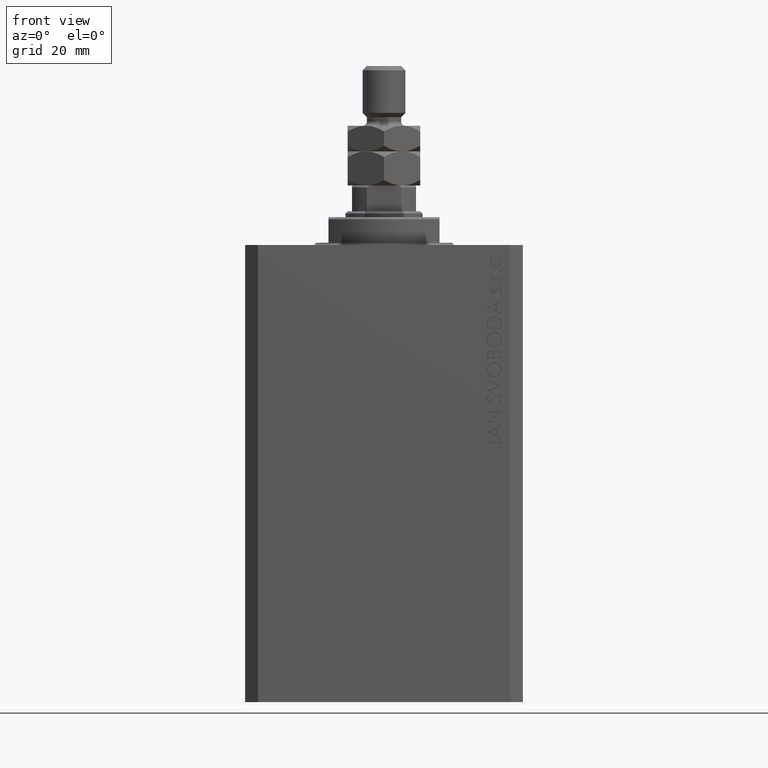
[diagram: clean part render]
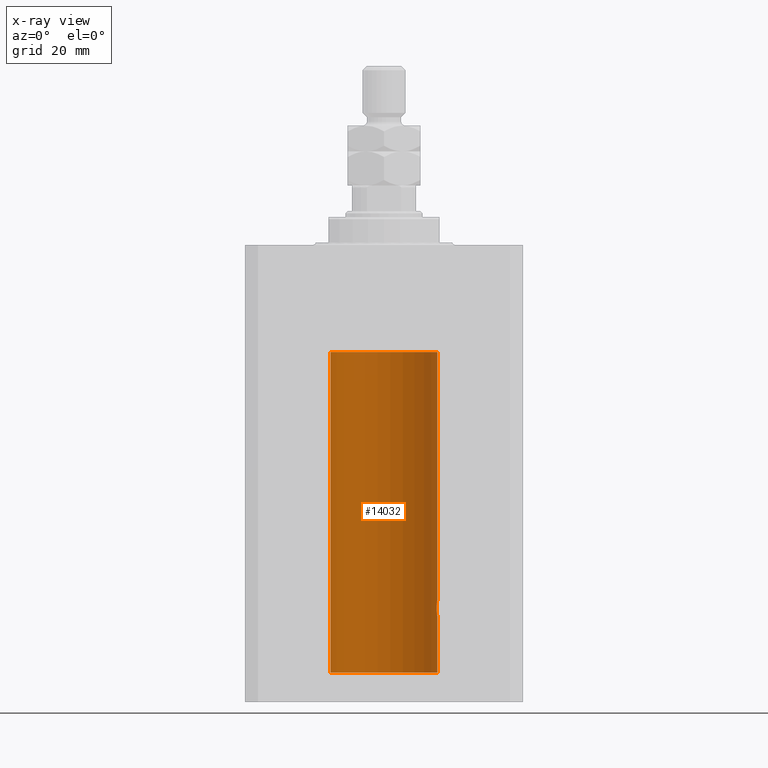
[diagram: x-ray — body ghosted, one internal face saturated and labeled with its STEP entity id]
A machine part, front view, then the same camera in x-ray: the body is ghosted and one INTERNAL B-rep face — a face not visible from any outside direction — is saturated and labeled: STEP entity #14032.
In plain terms, the highlighted cylindrical surface (partial cylindrical patch) has radius 12.5 mm, axis along (0, 0, 1).
Its self-contained STEP definition (entity closure, byte-faithful):
#295 = DIRECTION ( 'NONE',  ( -0.000000000000000000, -0.000000000000000000, 1.000000000000000000 ) ) ;
#584 = DIRECTION ( 'NONE',  ( -0.000000000000000000, -0.000000000000000000, 1.000000000000000000 ) ) ;
#1210 = AXIS2_PLACEMENT_3D ( 'NONE', #21184, #7134, #43877 ) ;
#1713 = CARTESIAN_POINT ( 'NONE',  ( 12.37021546997940291, 1.797317011867403114, -84.11295119741077997 ) ) ;
#1954 = CARTESIAN_POINT ( 'NONE',  ( 12.46910683544638232, 0.8866026273585037032, -83.20247863689694157 ) ) ;
#2512 = VERTEX_POINT ( 'NONE', #27157 ) ;
#3390 = CARTESIAN_POINT ( 'NONE',  ( 12.33896267925302759, 2.000000000000248246, -85.26143174220784715 ) ) ;
#3767 = DIRECTION ( 'NONE',  ( 1.000000000000000000, 0.000000000000000000, 0.000000000000000000 ) ) ;
#4020 = DIRECTION ( 'NONE',  ( -0.000000000000000000, -0.000000000000000000, 1.000000000000000000 ) ) ;
#4077 = VERTEX_POINT ( 'NONE', #44436 ) ;
#5258 = CARTESIAN_POINT ( 'NONE',  ( -12.50000000000000000, 1.530808498934191521E-15, -100.0999999999999943 ) ) ;
#7134 = DIRECTION ( 'NONE',  ( 0.000000000000000000, 0.000000000000000000, 1.000000000000000000 ) ) ;
#7235 = CYLINDRICAL_SURFACE ( 'NONE', #9393, 12.50000000000000000 ) ;
#8207 = ORIENTED_EDGE ( 'NONE', *, *, #34370, .F. ) ;
#8884 = CARTESIAN_POINT ( 'NONE',  ( 12.44079117518645639, 1.220047488436368122, -83.40989676335082947 ) ) ;
#9362 = CARTESIAN_POINT ( 'NONE',  ( 12.43037348241797524, 1.320834183883837554, -83.49243837704291593 ) ) ;
#9393 = AXIS2_PLACEMENT_3D ( 'NONE', #44718, #295, #3767 ) ;
#9427 = ORIENTED_EDGE ( 'NONE', *, *, #23526, .T. ) ;
#9605 = CARTESIAN_POINT ( 'NONE',  ( 12.37925647381943506, 1.734744884174218571, -83.99620732598648942 ) ) ;
#10311 = CARTESIAN_POINT ( 'NONE',  ( 12.48989642018887736, 0.5185418732824252919, -86.93601292187604201 ) ) ;
#11241 = EDGE_LOOP ( 'NONE', ( #39245, #8207, #20521, #9427, #26614, #16496, #11916 ) ) ;
#11274 = CARTESIAN_POINT ( 'NONE',  ( 12.33896267925302759, 2.000000000000247802, -84.99999999999998579 ) ) ;
#11916 = ORIENTED_EDGE ( 'NONE', *, *, #36371, .T. ) ;
#14032 = ADVANCED_FACE ( 'NONE', ( #15331 ), #7235, .F. ) ;
#14720 = CARTESIAN_POINT ( 'NONE',  ( 12.37760587642916477, 1.747868572747719229, -86.00639653169000098 ) ) ;
#14771 = CARTESIAN_POINT ( 'NONE',  ( 12.50000000000000000, 0.000000000000000000, -100.0999999999999943 ) ) ;
#15123 = CARTESIAN_POINT ( 'NONE',  ( 12.50000000000000000, 0.000000000000000000, -100.0999999999999943 ) ) ;
#15155 = VECTOR ( 'NONE', #33758, 1000.000000000000000 ) ;
#15331 = FACE_OUTER_BOUND ( 'NONE', #11241, .T. ) ;
#16496 = ORIENTED_EDGE ( 'NONE', *, *, #22641, .T. ) ;
#16511 = VERTEX_POINT ( 'NONE', #16621 ) ;
#16621 = CARTESIAN_POINT ( 'NONE',  ( -12.50000000000000000, 1.530808498934191521E-15, -100.0999999999999943 ) ) ;
#16712 = B_SPLINE_CURVE_WITH_KNOTS ( 'NONE', 3,
 ( #20687, #46849, #39674, #36235, #28107, #1713, #9605, #46606, #43141, #9362, #8884, #35734, #1954, #32287, #16991, #20931, #32042, #47342 ),
 .UNSPECIFIED., .F., .F.,
 ( 4, 2, 2, 2, 2, 2, 2, 2, 4 ),
 ( 0.003132244164174466730, 0.003523586189974241625, 0.003914928215774016521, 0.004306270241573791416, 0.004697612267373566311, 0.005088954293173341206, 0.005480296318973116101, 0.005871638344772890997, 0.006262980370572665892 ),
 .UNSPECIFIED. ) ;
#16991 = CARTESIAN_POINT ( 'NONE',  ( 12.48983962833819028, 0.5199974825204898288, -83.06435160808017315 ) ) ;
#17455 = CARTESIAN_POINT ( 'NONE',  ( -12.50000000000000000, 1.530808498934191521E-15, -25.10000000000000142 ) ) ;
#18351 = CARTESIAN_POINT ( 'NONE',  ( 12.50000000000000000, -7.266276684081261841E-23, -82.99999999999998579 ) ) ;
#20323 = VERTEX_POINT ( 'NONE', #17455 ) ;
#20521 = ORIENTED_EDGE ( 'NONE', *, *, #25469, .T. ) ;
#20687 = CARTESIAN_POINT ( 'NONE',  ( 12.33896267925302759, 2.000000000000247802, -84.99999999999998579 ) ) ;
#20931 = CARTESIAN_POINT ( 'NONE',  ( 12.49788668346399945, 0.2632864803365707607, -83.01308975838333026 ) ) ;
#21149 = CARTESIAN_POINT ( 'NONE',  ( 0.000000000000000000, 0.000000000000000000, -100.0999999999999943 ) ) ;
#21184 = CARTESIAN_POINT ( 'NONE',  ( 0.000000000000000000, 0.000000000000000000, -25.10000000000000142 ) ) ;
#22488 = CIRCLE ( 'NONE', #1210, 12.50000000000000000 ) ;
#22641 = EDGE_CURVE ( 'NONE', #45644, #23440, #27187, .T. ) ;
#22770 = CARTESIAN_POINT ( 'NONE',  ( 12.50000000000000000, 0.000000000000000000, -100.0999999999999943 ) ) ;
#22864 = CARTESIAN_POINT ( 'NONE',  ( 12.43016561391612917, 1.322713721413880661, -86.50578877836700542 ) ) ;
#23440 = VERTEX_POINT ( 'NONE', #44330 ) ;
#23526 = EDGE_CURVE ( 'NONE', #2512, #4077, #32337, .T. ) ;
#24007 = LINE ( 'NONE', #5258, #26930 ) ;
#24016 = EDGE_CURVE ( 'NONE', #16511, #20323, #24007, .T. ) ;
#25349 = CARTESIAN_POINT ( 'NONE',  ( 12.48390005916863110, 0.6457215011736527899, -86.89742771554266199 ) ) ;
#25469 = EDGE_CURVE ( 'NONE', #37095, #2512, #33519, .T. ) ;
#25842 = CARTESIAN_POINT ( 'NONE',  ( 12.34779119491631683, 1.947363444907009633, -85.52502775168252924 ) ) ;
#26614 = ORIENTED_EDGE ( 'NONE', *, *, #38346, .T. ) ;
#26930 = VECTOR ( 'NONE', #584, 1000.000000000000000 ) ;
#27157 = CARTESIAN_POINT ( 'NONE',  ( 12.50000000000000000, 2.320363022323678888E-15, -87.00000000000000000 ) ) ;
#27159 = AXIS2_PLACEMENT_3D ( 'NONE', #21149, #44588, #28809 ) ;
#27187 = LINE ( 'NONE', #22770, #31607 ) ;
#28107 = CARTESIAN_POINT ( 'NONE',  ( 12.35520276972935427, 1.897773362058238877, -84.35528278634336630 ) ) ;
#28809 = DIRECTION ( 'NONE',  ( 1.000000000000000000, 0.000000000000000000, 0.000000000000000000 ) ) ;
#29047 = CARTESIAN_POINT ( 'NONE',  ( 12.50000000000000178, 0.1324055009716466613, -87.00000000000002842 ) ) ;
#31607 = VECTOR ( 'NONE', #4020, 1000.000000000000000 ) ;
#32042 = CARTESIAN_POINT ( 'NONE',  ( 12.49999999999999822, 0.1306079576516667173, -82.99999999999997158 ) ) ;
#32287 = CARTESIAN_POINT ( 'NONE',  ( 12.48395395845270528, 0.6446573166014707423, -83.10222124213517247 ) ) ;
#32337 = B_SPLINE_CURVE_WITH_KNOTS ( 'NONE', 3,
 ( #47796, #29047, #44089, #10311, #25349, #48280, #33467, #38138, #22864, #34194, #14720, #25842, #3390, #11274 ),
 .UNSPECIFIED., .F., .F.,
 ( 4, 2, 2, 2, 2, 2, 4 ),
 ( 2.254408494944823136E-18, 0.0003915305205218102386, 0.0007830610410436180920, 0.001174591561565426108, 0.001566122082087234016, 0.002349183123130850048, 0.003132244164174466730 ),
 .UNSPECIFIED. ) ;
#33467 = CARTESIAN_POINT ( 'NONE',  ( 12.46019522898365217, 1.002712894177336223, -86.73540896027598990 ) ) ;
#33519 = LINE ( 'NONE', #14771, #15155 ) ;
#33758 = DIRECTION ( 'NONE',  ( -0.000000000000000000, -0.000000000000000000, 1.000000000000000000 ) ) ;
#34194 = CARTESIAN_POINT ( 'NONE',  ( 12.39869754437268590, 1.598954131913722820, -86.22932152813008599 ) ) ;
#34370 = EDGE_CURVE ( 'NONE', #37095, #16511, #48432, .T. ) ;
#35734 = CARTESIAN_POINT ( 'NONE',  ( 12.46011632531798874, 1.003644408234883434, -83.26516799687671266 ) ) ;
#36235 = CARTESIAN_POINT ( 'NONE',  ( 12.34924836377099844, 1.935649219704934865, -84.48002062127160627 ) ) ;
#36371 = EDGE_CURVE ( 'NONE', #23440, #20323, #22488, .T. ) ;
#37095 = VERTEX_POINT ( 'NONE', #15123 ) ;
#38138 = CARTESIAN_POINT ( 'NONE',  ( 12.44079900692650931, 1.220007525301739282, -86.59017579083662497 ) ) ;
#38346 = EDGE_CURVE ( 'NONE', #4077, #45644, #16712, .T. ) ;
#39245 = ORIENTED_EDGE ( 'NONE', *, *, #24016, .F. ) ;
#39674 = CARTESIAN_POINT ( 'NONE',  ( 12.34110728646152388, 1.986893050944454453, -84.73661347764983987 ) ) ;
#43141 = CARTESIAN_POINT ( 'NONE',  ( 12.40916530024876430, 1.507117913375715990, -83.67865955049002480 ) ) ;
#43877 = DIRECTION ( 'NONE',  ( 1.000000000000000000, 0.000000000000000000, 0.000000000000000000 ) ) ;
#44089 = CARTESIAN_POINT ( 'NONE',  ( 12.49789833780794446, 0.2625555164371021766, -86.98698170822147802 ) ) ;
#44330 = CARTESIAN_POINT ( 'NONE',  ( 12.50000000000000000, 0.000000000000000000, -25.10000000000000142 ) ) ;
#44436 = CARTESIAN_POINT ( 'NONE',  ( 12.33896267925302759, 2.000000000000247802, -84.99999999999998579 ) ) ;
#44588 = DIRECTION ( 'NONE',  ( 0.000000000000000000, 0.000000000000000000, 1.000000000000000000 ) ) ;
#44718 = CARTESIAN_POINT ( 'NONE',  ( 0.000000000000000000, 0.000000000000000000, -100.0999999999999943 ) ) ;
#45644 = VERTEX_POINT ( 'NONE', #18351 ) ;
#46606 = CARTESIAN_POINT ( 'NONE',  ( 12.39867611624532806, 1.590019252152828910, -83.77984495929609920 ) ) ;
#46849 = CARTESIAN_POINT ( 'NONE',  ( 12.33896267925302581, 2.000000000000247358, -84.86934705949914814 ) ) ;
#47342 = CARTESIAN_POINT ( 'NONE',  ( 12.50000000000000000, -7.266276684081261841E-23, -82.99999999999998579 ) ) ;
#47796 = CARTESIAN_POINT ( 'NONE',  ( 12.50000000000000000, 2.320363022323678888E-15, -87.00000000000000000 ) ) ;
#48280 = CARTESIAN_POINT ( 'NONE',  ( 12.46901623405144122, 0.8878913781257877780, -86.79689651717548315 ) ) ;
#48432 = CIRCLE ( 'NONE', #27159, 12.50000000000000000 ) ;